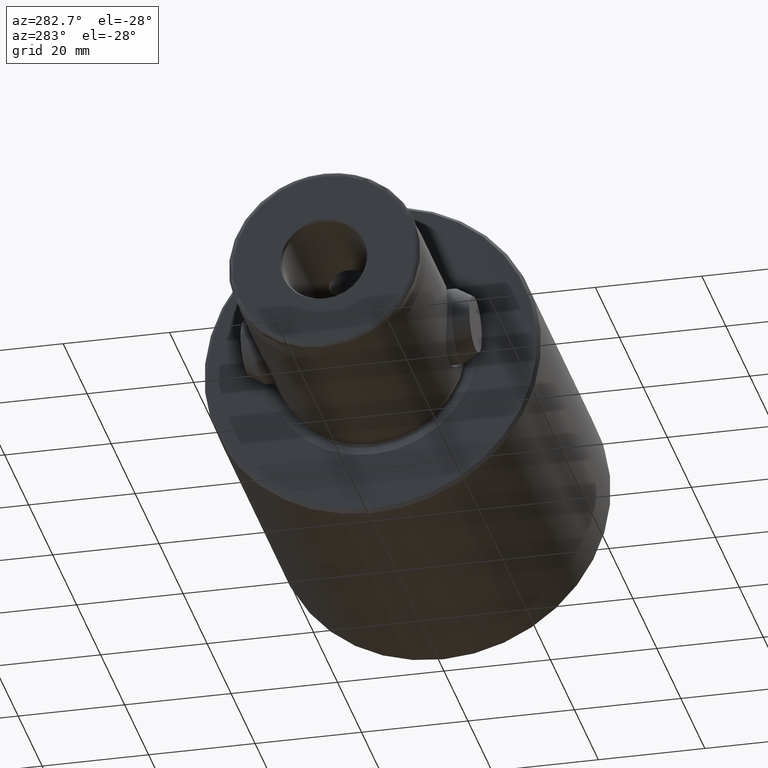
[diagram: clean part render]
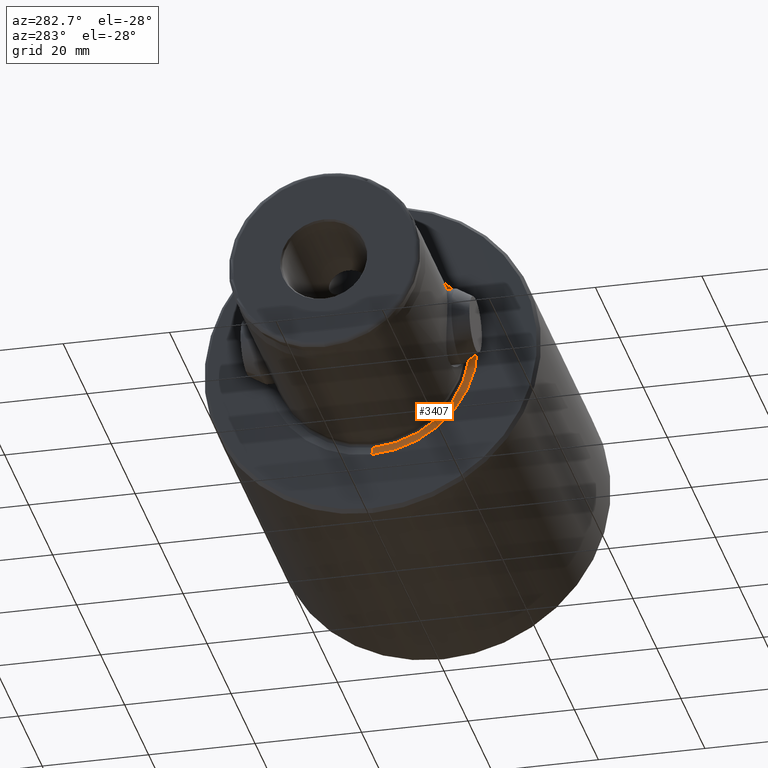
[diagram: same view with one face highlighted and labeled with its STEP entity id]
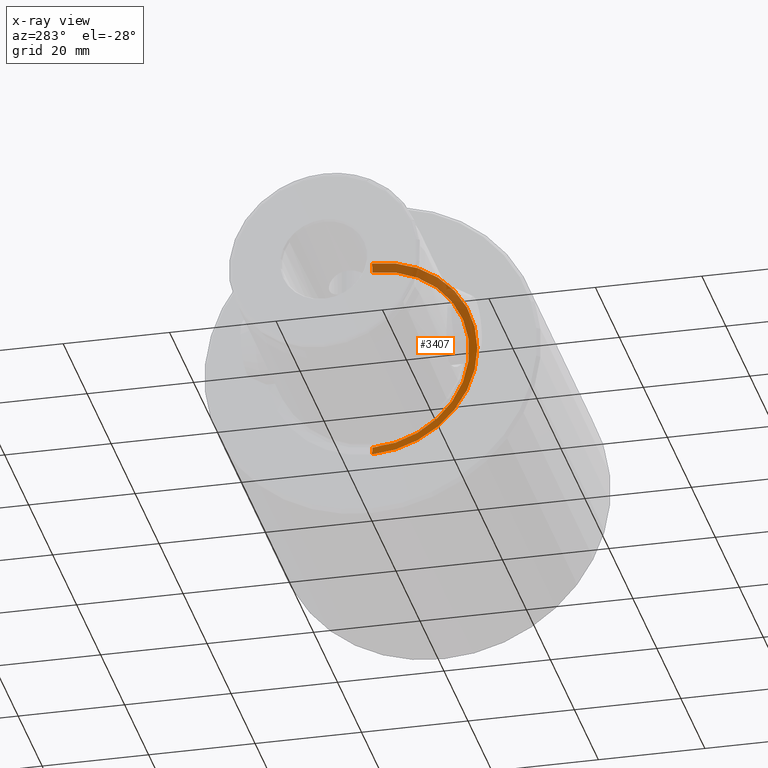
[diagram: x-ray of the same camera — body ghosted, the highlighted face saturated]
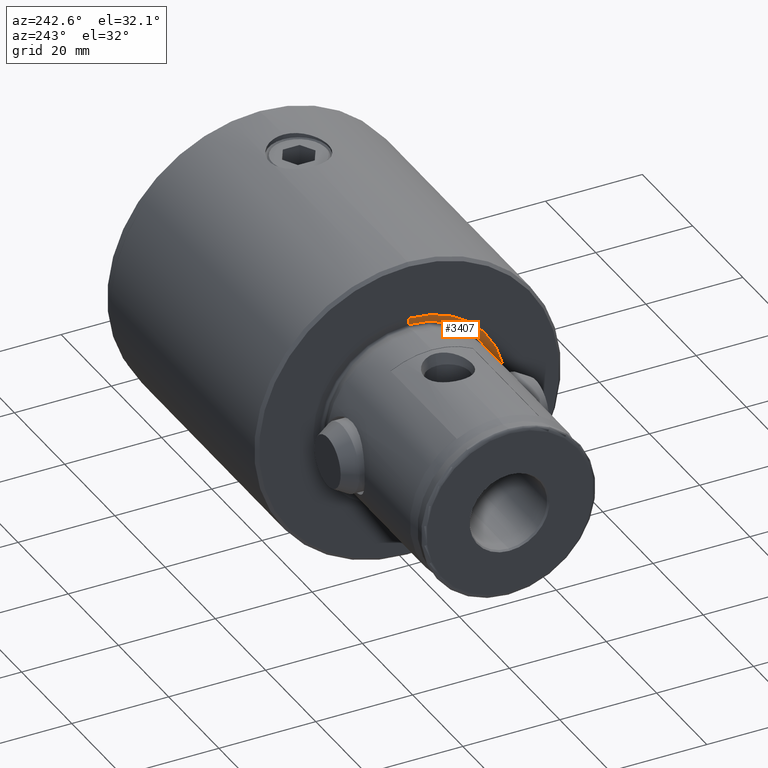
[diagram: same view with one face highlighted and labeled with its STEP entity id]
A machine part, auxiliary view. The second image highlights one B-rep face of the part: STEP entity #3407.
The next image is the same camera in x-ray: the body ghosted, the highlighted face saturated — about 47% of this face is hidden behind the body in this view.
A second angle (auxiliary view) of the same face is appended — the face is thin or edge-on in the first view.
In plain terms, the highlighted conical surface has half-angle 75 deg.
Its self-contained STEP definition (entity closure, byte-faithful):
#126 = CIRCLE ( 'NONE', #2603, 18.17940952255125400 ) ;
#297 = CARTESIAN_POINT ( 'NONE',  ( 0.0000000000000000000, 0.0000000000000000000, 60.00000000000000000 ) ) ;
#337 = EDGE_CURVE ( 'NONE', #2834, #4115, #3274, .T. ) ;
#414 = CARTESIAN_POINT ( 'NONE',  ( 18.17940952255125400, 0.0000000000000000000, 59.56703708685546400 ) ) ;
#419 = CARTESIAN_POINT ( 'NONE',  ( -19.79524911219973000, 2.424218846357988500E-015, 60.00000000000000000 ) ) ;
#500 = VERTEX_POINT ( 'NONE', #2951 ) ;
#584 = EDGE_CURVE ( 'NONE', #3733, #4115, #2209, .T. ) ;
#771 = EDGE_LOOP ( 'NONE', ( #1464, #3125, #4621, #3069 ) ) ;
#1025 = DIRECTION ( 'NONE',  ( 0.0000000000000000000, 0.0000000000000000000, 1.000000000000000000 ) ) ;
#1093 = LINE ( 'NONE', #3254, #2928 ) ;
#1225 = CONICAL_SURFACE ( 'NONE', #3903, 18.17940952255125400, 1.308996938995754100 ) ;
#1464 = ORIENTED_EDGE ( 'NONE', *, *, #2935, .T. ) ;
#1642 = CARTESIAN_POINT ( 'NONE',  ( 0.0000000000000000000, 0.0000000000000000000, 59.56703708685546400 ) ) ;
#2209 = LINE ( 'NONE', #2244, #2960 ) ;
#2244 = CARTESIAN_POINT ( 'NONE',  ( 18.17940952255125400, 0.0000000000000000000, 59.56703708685546400 ) ) ;
#2496 = DIRECTION ( 'NONE',  ( 1.000000000000000000, 0.0000000000000000000, 0.0000000000000000000 ) ) ;
#2526 = CARTESIAN_POINT ( 'NONE',  ( 0.0000000000000000000, 0.0000000000000000000, 59.56703708685546400 ) ) ;
#2603 = AXIS2_PLACEMENT_3D ( 'NONE', #1642, #4199, #4552 ) ;
#2631 = EDGE_CURVE ( 'NONE', #500, #2834, #1093, .T. ) ;
#2706 = FACE_OUTER_BOUND ( 'NONE', #771, .T. ) ;
#2834 = VERTEX_POINT ( 'NONE', #419 ) ;
#2928 = VECTOR ( 'NONE', #4058, 1000.000000000000000 ) ;
#2935 = EDGE_CURVE ( 'NONE', #3733, #500, #126, .T. ) ;
#2951 = CARTESIAN_POINT ( 'NONE',  ( -18.17940952255125400, 2.325277207288059400E-015, 59.56703708685546400 ) ) ;
#2960 = VECTOR ( 'NONE', #4050, 1000.000000000000000 ) ;
#3069 = ORIENTED_EDGE ( 'NONE', *, *, #584, .F. ) ;
#3125 = ORIENTED_EDGE ( 'NONE', *, *, #2631, .T. ) ;
#3197 = AXIS2_PLACEMENT_3D ( 'NONE', #297, #4619, #3928 ) ;
#3254 = CARTESIAN_POINT ( 'NONE',  ( -18.17940952255125400, 2.226335568218130700E-015, 59.56703708685546400 ) ) ;
#3274 = CIRCLE ( 'NONE', #3197, 19.79524911219972700 ) ;
#3407 = ADVANCED_FACE ( 'NONE', ( #2706 ), #1225, .F. ) ;
#3733 = VERTEX_POINT ( 'NONE', #414 ) ;
#3903 = AXIS2_PLACEMENT_3D ( 'NONE', #2526, #1025, #2496 ) ;
#3928 = DIRECTION ( 'NONE',  ( 1.000000000000000000, 0.0000000000000000000, 0.0000000000000000000 ) ) ;
#4050 = DIRECTION ( 'NONE',  ( 0.9659258262890700900, 0.0000000000000000000, 0.2588190451025140800 ) ) ;
#4058 = DIRECTION ( 'NONE',  ( -0.9659258262890700900, 1.182917971378672100E-016, 0.2588190451025140800 ) ) ;
#4115 = VERTEX_POINT ( 'NONE', #4238 ) ;
#4199 = DIRECTION ( 'NONE',  ( 0.0000000000000000000, 0.0000000000000000000, -1.000000000000000000 ) ) ;
#4238 = CARTESIAN_POINT ( 'NONE',  ( 19.79524911219973000, 0.0000000000000000000, 60.00000000000000000 ) ) ;
#4552 = DIRECTION ( 'NONE',  ( -1.000000000000000000, 0.0000000000000000000, 0.0000000000000000000 ) ) ;
#4619 = DIRECTION ( 'NONE',  ( 0.0000000000000000000, 0.0000000000000000000, 1.000000000000000000 ) ) ;
#4621 = ORIENTED_EDGE ( 'NONE', *, *, #337, .T. ) ;